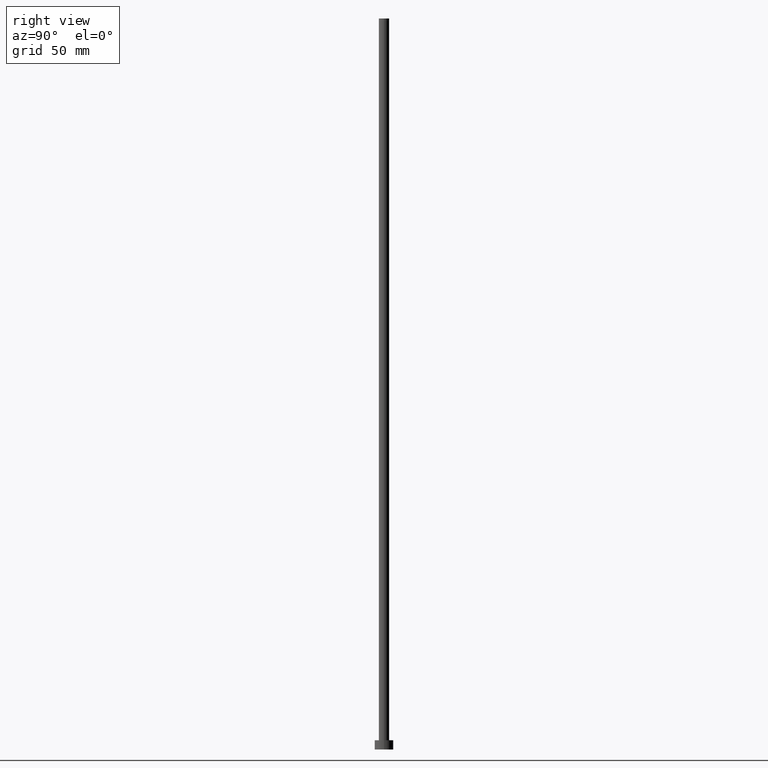
[diagram: clean part render]
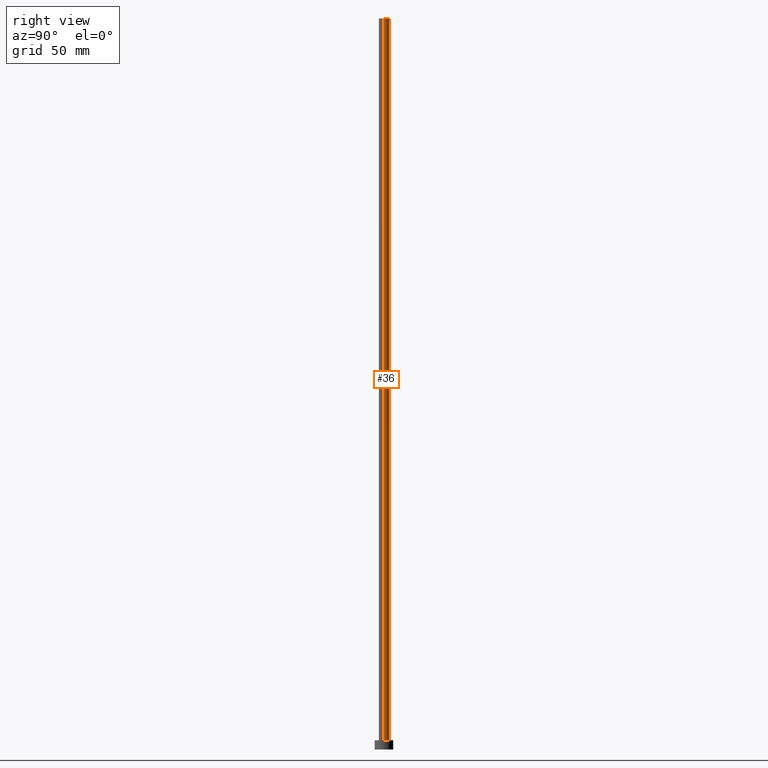
[diagram: same view with one face highlighted and labeled with its STEP entity id]
A machine part, right view. The second image highlights one B-rep face of the part: STEP entity #36.
In plain terms, the highlighted cylindrical surface (edge-blend (fillet) strip) has radius 2.25 mm, axis along (-0, -0, -1).
Its self-contained STEP definition (entity closure, byte-faithful):
#12 = VECTOR ( 'NONE', #82, 1000.000000000000000 ) ;
#14 = DIRECTION ( 'NONE',  ( -1.000000000000000000, 0.000000000000000000, 0.000000000000000000 ) ) ;
#26 = VECTOR ( 'NONE', #93, 1000.000000000000000 ) ;
#36 = ADVANCED_FACE ( 'NONE', ( #108 ), #192, .T. ) ;
#37 = VERTEX_POINT ( 'NONE', #230 ) ;
#43 = EDGE_CURVE ( 'NONE', #209, #37, #168, .T. ) ;
#56 = EDGE_CURVE ( 'NONE', #255, #37, #162, .T. ) ;
#58 = AXIS2_PLACEMENT_3D ( 'NONE', #178, #123, #81 ) ;
#60 = CARTESIAN_POINT ( 'NONE',  ( -2.250000000000000000, 0.000000000000000000, 315.0000000000000000 ) ) ;
#66 = VERTEX_POINT ( 'NONE', #244 ) ;
#67 = CARTESIAN_POINT ( 'NONE',  ( 2.250000000000000000, 2.755455298081544285E-16, 315.0000000000000000 ) ) ;
#70 = ORIENTED_EDGE ( 'NONE', *, *, #56, .T. ) ;
#73 = LINE ( 'NONE', #67, #12 ) ;
#75 = EDGE_CURVE ( 'NONE', #66, #255, #73, .T. ) ;
#81 = DIRECTION ( 'NONE',  ( 1.000000000000000000, 0.000000000000000000, 0.000000000000000000 ) ) ;
#82 = DIRECTION ( 'NONE',  ( -0.000000000000000000, -0.000000000000000000, -1.000000000000000000 ) ) ;
#93 = DIRECTION ( 'NONE',  ( -0.000000000000000000, -0.000000000000000000, -1.000000000000000000 ) ) ;
#108 = FACE_OUTER_BOUND ( 'NONE', #219, .T. ) ;
#113 = CARTESIAN_POINT ( 'NONE',  ( 0.000000000000000000, 0.000000000000000000, 4.000000000000000000 ) ) ;
#120 = AXIS2_PLACEMENT_3D ( 'NONE', #113, #171, #135 ) ;
#122 = CARTESIAN_POINT ( 'NONE',  ( 2.250000000000000000, 2.755455298081544285E-16, 4.000000000000000000 ) ) ;
#123 = DIRECTION ( 'NONE',  ( 0.000000000000000000, 0.000000000000000000, 1.000000000000000000 ) ) ;
#135 = DIRECTION ( 'NONE',  ( 1.000000000000000000, 0.000000000000000000, 0.000000000000000000 ) ) ;
#142 = CIRCLE ( 'NONE', #58, 2.250000000000000000 ) ;
#144 = EDGE_CURVE ( 'NONE', #66, #209, #142, .T. ) ;
#150 = ORIENTED_EDGE ( 'NONE', *, *, #43, .F. ) ;
#161 = CARTESIAN_POINT ( 'NONE',  ( -2.250000000000000000, 0.000000000000000000, 315.0000000000000000 ) ) ;
#162 = CIRCLE ( 'NONE', #120, 2.250000000000000000 ) ;
#165 = ORIENTED_EDGE ( 'NONE', *, *, #75, .T. ) ;
#168 = LINE ( 'NONE', #60, #26 ) ;
#171 = DIRECTION ( 'NONE',  ( 0.000000000000000000, 0.000000000000000000, 1.000000000000000000 ) ) ;
#178 = CARTESIAN_POINT ( 'NONE',  ( 0.000000000000000000, 0.000000000000000000, 315.0000000000000000 ) ) ;
#192 = CYLINDRICAL_SURFACE ( 'NONE', #229, 2.250000000000000000 ) ;
#195 = ORIENTED_EDGE ( 'NONE', *, *, #144, .F. ) ;
#209 = VERTEX_POINT ( 'NONE', #161 ) ;
#219 = EDGE_LOOP ( 'NONE', ( #195, #165, #70, #150 ) ) ;
#228 = DIRECTION ( 'NONE',  ( -0.000000000000000000, -0.000000000000000000, -1.000000000000000000 ) ) ;
#229 = AXIS2_PLACEMENT_3D ( 'NONE', #231, #228, #14 ) ;
#230 = CARTESIAN_POINT ( 'NONE',  ( -2.250000000000000000, 0.000000000000000000, 4.000000000000000000 ) ) ;
#231 = CARTESIAN_POINT ( 'NONE',  ( 0.000000000000000000, 0.000000000000000000, 315.0000000000000000 ) ) ;
#244 = CARTESIAN_POINT ( 'NONE',  ( 2.250000000000000000, 2.755455298081544285E-16, 315.0000000000000000 ) ) ;
#255 = VERTEX_POINT ( 'NONE', #122 ) ;